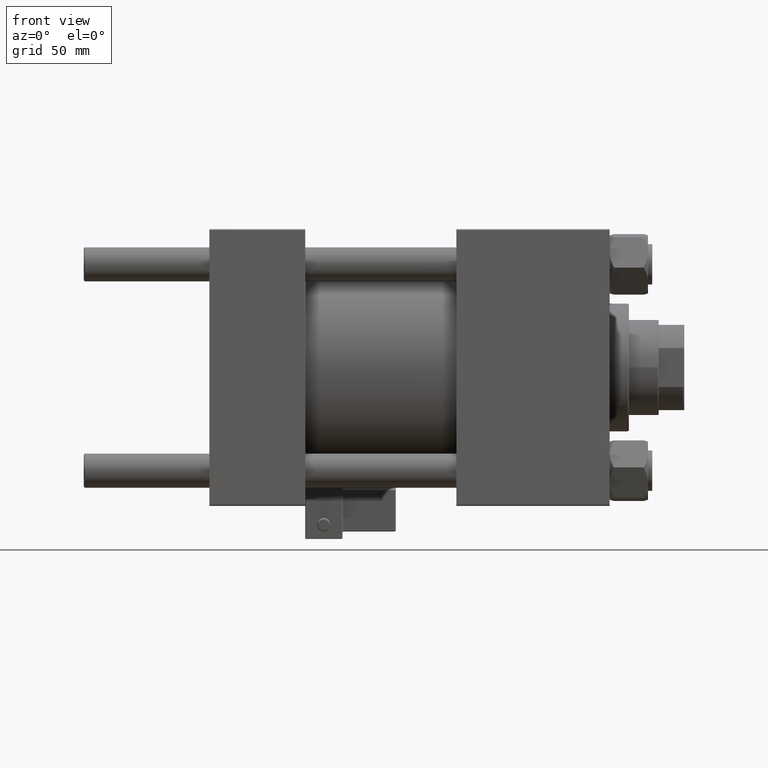
[diagram: clean part render]
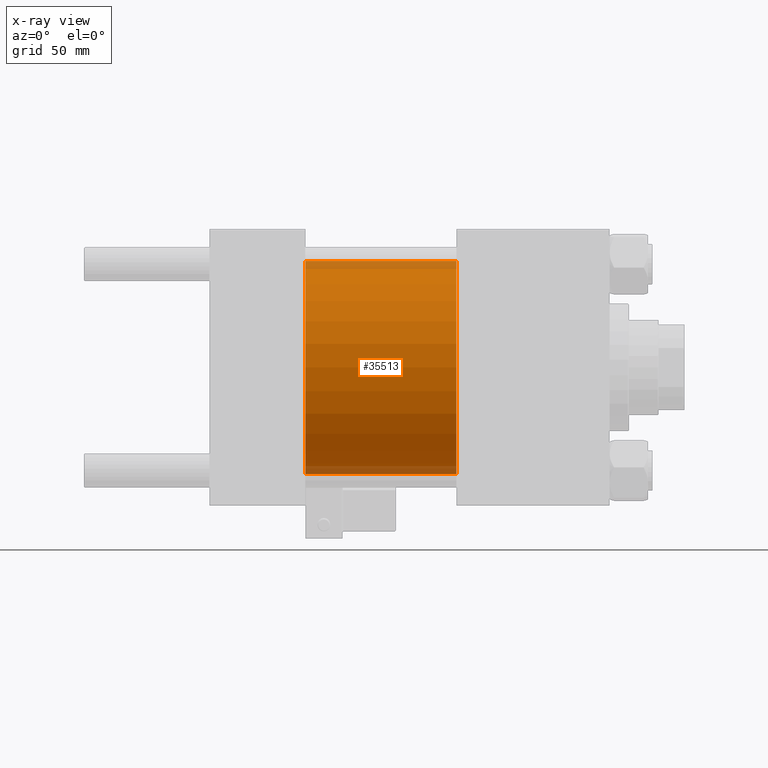
[diagram: x-ray — body ghosted, one internal face saturated and labeled with its STEP entity id]
A machine part, front view, then the same camera in x-ray: the body is ghosted and one INTERNAL B-rep face — a face not visible from any outside direction — is saturated and labeled: STEP entity #35513.
In plain terms, the highlighted cylindrical surface (partial cylindrical patch) has radius 50 mm, axis along (-1, -0, -0).
Its self-contained STEP definition (entity closure, byte-faithful):
#2285 = ORIENTED_EDGE ( 'NONE', *, *, #20541, .T. ) ;
#2326 = LINE ( 'NONE', #34714, #5846 ) ;
#2962 = VERTEX_POINT ( 'NONE', #33356 ) ;
#5143 = CYLINDRICAL_SURFACE ( 'NONE', #36654, 50.00000000000000000 ) ;
#5846 = VECTOR ( 'NONE', #25720, 1000.000000000000000 ) ;
#6590 = CARTESIAN_POINT ( 'NONE',  ( 45.00000000000000000, 0.000000000000000000, 0.000000000000000000 ) ) ;
#9547 = VERTEX_POINT ( 'NONE', #38412 ) ;
#10171 = ORIENTED_EDGE ( 'NONE', *, *, #22478, .F. ) ;
#12402 = EDGE_CURVE ( 'NONE', #43261, #28483, #2326, .T. ) ;
#12865 = CARTESIAN_POINT ( 'NONE',  ( 115.9999999999999858, 0.000000000000000000, 0.000000000000000000 ) ) ;
#13391 = DIRECTION ( 'NONE',  ( -1.000000000000000000, -0.000000000000000000, -0.000000000000000000 ) ) ;
#14836 = DIRECTION ( 'NONE',  ( 1.000000000000000000, 0.000000000000000000, 0.000000000000000000 ) ) ;
#17909 = CIRCLE ( 'NONE', #43306, 50.00000000000000000 ) ;
#18429 = DIRECTION ( 'NONE',  ( 1.000000000000000000, 0.000000000000000000, 0.000000000000000000 ) ) ;
#18821 = DIRECTION ( 'NONE',  ( 0.000000000000000000, 0.000000000000000000, -1.000000000000000000 ) ) ;
#20541 = EDGE_CURVE ( 'NONE', #43261, #2962, #17909, .T. ) ;
#21355 = DIRECTION ( 'NONE',  ( 0.000000000000000000, 0.000000000000000000, 1.000000000000000000 ) ) ;
#22478 = EDGE_CURVE ( 'NONE', #28483, #9547, #51896, .T. ) ;
#22666 = DIRECTION ( 'NONE',  ( 0.000000000000000000, 0.000000000000000000, -1.000000000000000000 ) ) ;
#25720 = DIRECTION ( 'NONE',  ( -1.000000000000000000, -0.000000000000000000, -0.000000000000000000 ) ) ;
#28483 = VERTEX_POINT ( 'NONE', #35936 ) ;
#30628 = CARTESIAN_POINT ( 'NONE',  ( 115.9999999999999858, 0.000000000000000000, 0.000000000000000000 ) ) ;
#33356 = CARTESIAN_POINT ( 'NONE',  ( 115.9999999999999858, 6.123233995736766085E-15, -50.00000000000000000 ) ) ;
#33389 = DIRECTION ( 'NONE',  ( -1.000000000000000000, -0.000000000000000000, -0.000000000000000000 ) ) ;
#33756 = EDGE_LOOP ( 'NONE', ( #2285, #41405, #10171, #40442 ) ) ;
#34714 = CARTESIAN_POINT ( 'NONE',  ( 115.9999999999999858, 0.000000000000000000, 50.00000000000000000 ) ) ;
#35513 = ADVANCED_FACE ( 'NONE', ( #45499 ), #5143, .F. ) ;
#35764 = AXIS2_PLACEMENT_3D ( 'NONE', #6590, #14836, #18821 ) ;
#35936 = CARTESIAN_POINT ( 'NONE',  ( 45.00000000000000000, 0.000000000000000000, 50.00000000000000000 ) ) ;
#36321 = CARTESIAN_POINT ( 'NONE',  ( 115.9999999999999858, 6.123233995736766085E-15, -50.00000000000000000 ) ) ;
#36654 = AXIS2_PLACEMENT_3D ( 'NONE', #12865, #13391, #21355 ) ;
#38412 = CARTESIAN_POINT ( 'NONE',  ( 45.00000000000000000, 6.123233995736766085E-15, -50.00000000000000000 ) ) ;
#40442 = ORIENTED_EDGE ( 'NONE', *, *, #12402, .F. ) ;
#41149 = CARTESIAN_POINT ( 'NONE',  ( 115.9999999999999858, 0.000000000000000000, 50.00000000000000000 ) ) ;
#41405 = ORIENTED_EDGE ( 'NONE', *, *, #51761, .T. ) ;
#43261 = VERTEX_POINT ( 'NONE', #41149 ) ;
#43306 = AXIS2_PLACEMENT_3D ( 'NONE', #30628, #18429, #22666 ) ;
#44760 = VECTOR ( 'NONE', #33389, 1000.000000000000000 ) ;
#45499 = FACE_OUTER_BOUND ( 'NONE', #33756, .T. ) ;
#51761 = EDGE_CURVE ( 'NONE', #2962, #9547, #52536, .T. ) ;
#51896 = CIRCLE ( 'NONE', #35764, 50.00000000000000000 ) ;
#52536 = LINE ( 'NONE', #36321, #44760 ) ;